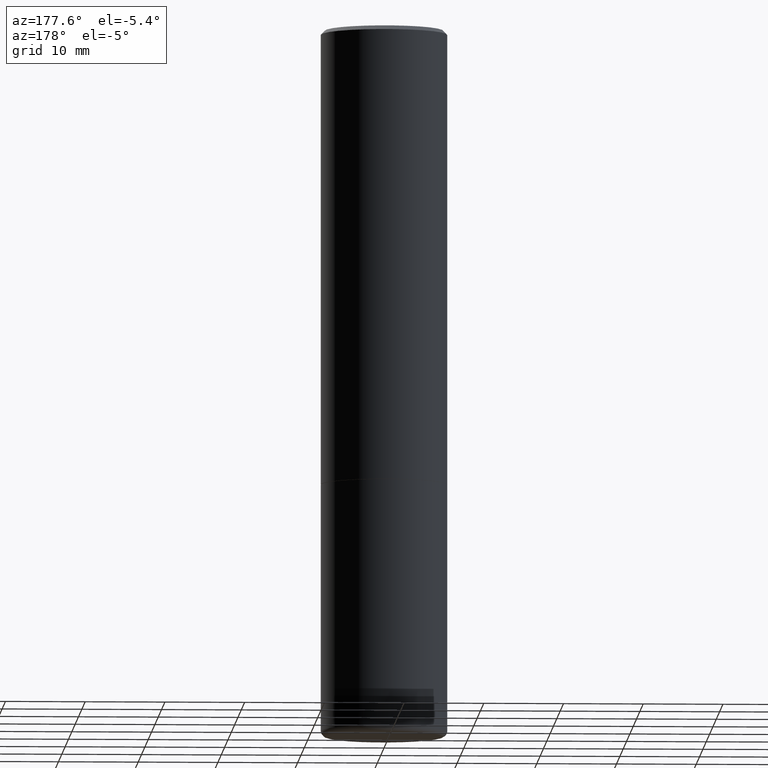
[diagram: clean part render]
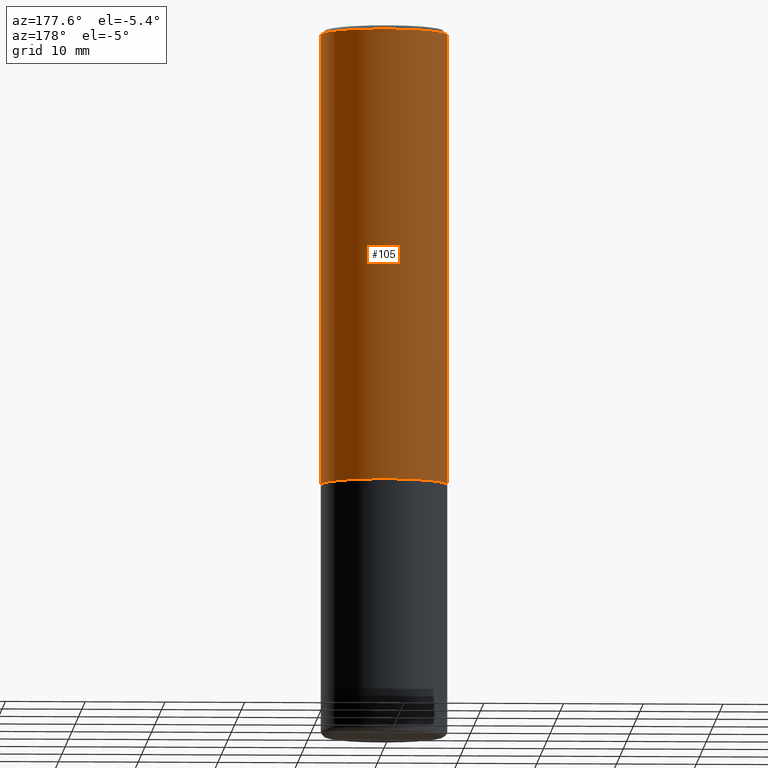
[diagram: same view with one face highlighted and labeled with its STEP entity id]
A machine part, auxiliary view. The second image highlights one B-rep face of the part: STEP entity #105.
In plain terms, the highlighted cylindrical surface (partial cylindrical patch) has radius 7.9375 mm, axis along (-0, 0, 1).
Its self-contained STEP definition (entity closure, byte-faithful):
#31 = ORIENTED_EDGE ( 'NONE', *, *, #243, .F. ) ;
#34 = LINE ( 'NONE', #168, #214 ) ;
#35 = EDGE_CURVE ( 'NONE', #50, #240, #352, .T. ) ;
#36 = CARTESIAN_POINT ( 'NONE',  ( -0.3125000000000000000, -1.740639529667232739E-15, -2.248999999999999222 ) ) ;
#50 = VERTEX_POINT ( 'NONE', #75 ) ;
#69 = CIRCLE ( 'NONE', #321, 0.3125000000000000000 ) ;
#75 = CARTESIAN_POINT ( 'NONE',  ( 0.3124999999999998335, -2.213735251080465334E-15, -0.02000000000000002123 ) ) ;
#79 = EDGE_CURVE ( 'NONE', #278, #240, #34, .T. ) ;
#81 = CYLINDRICAL_SURFACE ( 'NONE', #276, 0.3124999999999998890 ) ;
#95 = CARTESIAN_POINT ( 'NONE',  ( 0.3124999999999998890, -2.182175836776957558E-15, 1.523805242436229235E-29 ) ) ;
#105 = ADVANCED_FACE ( 'NONE', ( #215 ), #81, .T. ) ;
#111 = DIRECTION ( 'NONE',  ( -2.445468806185136597E-29, 3.491481338843145583E-15, 1.000000000000000000 ) ) ;
#118 = ORIENTED_EDGE ( 'NONE', *, *, #79, .T. ) ;
#143 = CARTESIAN_POINT ( 'NONE',  ( 0.000000000000000000, 0.000000000000000000, 0.000000000000000000 ) ) ;
#146 = DIRECTION ( 'NONE',  ( -2.445468806185136597E-29, 3.491481338843145583E-15, 1.000000000000000000 ) ) ;
#168 = CARTESIAN_POINT ( 'NONE',  ( -0.3124999999999998890, 2.220446049250312292E-15, -1.537167215704657391E-29 ) ) ;
#183 = VERTEX_POINT ( 'NONE', #192 ) ;
#192 = CARTESIAN_POINT ( 'NONE',  ( 0.3125000000000000000, -1.003451736783519063E-14, -2.248999999999999222 ) ) ;
#207 = VECTOR ( 'NONE', #369, 39.37007874015748143 ) ;
#214 = VECTOR ( 'NONE', #307, 39.37007874015748143 ) ;
#215 = FACE_OUTER_BOUND ( 'NONE', #322, .T. ) ;
#228 = AXIS2_PLACEMENT_3D ( 'NONE', #420, #111, #242 ) ;
#240 = VERTEX_POINT ( 'NONE', #442 ) ;
#242 = DIRECTION ( 'NONE',  ( 1.000000000000000000, -6.982962677686265133E-15, 0.000000000000000000 ) ) ;
#243 = EDGE_CURVE ( 'NONE', #183, #50, #339, .T. ) ;
#248 = DIRECTION ( 'NONE',  ( 1.000000000000000000, -6.982962677686266711E-15, 4.876176775795935232E-29 ) ) ;
#254 = EDGE_CURVE ( 'NONE', #183, #278, #69, .T. ) ;
#259 = CARTESIAN_POINT ( 'NONE',  ( 5.499859345110370619E-29, -7.852341531058232286E-15, -2.248999999999999222 ) ) ;
#265 = DIRECTION ( 'NONE',  ( 1.000000000000000000, -6.982962677686269077E-15, 0.000000000000000000 ) ) ;
#276 = AXIS2_PLACEMENT_3D ( 'NONE', #143, #146, #248 ) ;
#278 = VERTEX_POINT ( 'NONE', #36 ) ;
#291 = ORIENTED_EDGE ( 'NONE', *, *, #35, .F. ) ;
#307 = DIRECTION ( 'NONE',  ( -2.445468806185136877E-29, 3.491481338843145188E-15, 1.000000000000000000 ) ) ;
#321 = AXIS2_PLACEMENT_3D ( 'NONE', #259, #438, #265 ) ;
#322 = EDGE_LOOP ( 'NONE', ( #418, #118, #291, #31 ) ) ;
#339 = LINE ( 'NONE', #95, #207 ) ;
#352 = CIRCLE ( 'NONE', #228, 0.3124999999999998335 ) ;
#369 = DIRECTION ( 'NONE',  ( -2.445468806185136877E-29, 3.491481338843145188E-15, 1.000000000000000000 ) ) ;
#418 = ORIENTED_EDGE ( 'NONE', *, *, #254, .T. ) ;
#420 = CARTESIAN_POINT ( 'NONE',  ( 4.890937612370278413E-31, -6.982962677686297772E-17, -0.02000000000000002123 ) ) ;
#438 = DIRECTION ( 'NONE',  ( -2.445468806185136597E-29, 3.491481338843145583E-15, 1.000000000000000000 ) ) ;
#442 = CARTESIAN_POINT ( 'NONE',  ( -0.3124999999999998335, 2.112346210000093866E-15, -0.02000000000000002123 ) ) ;